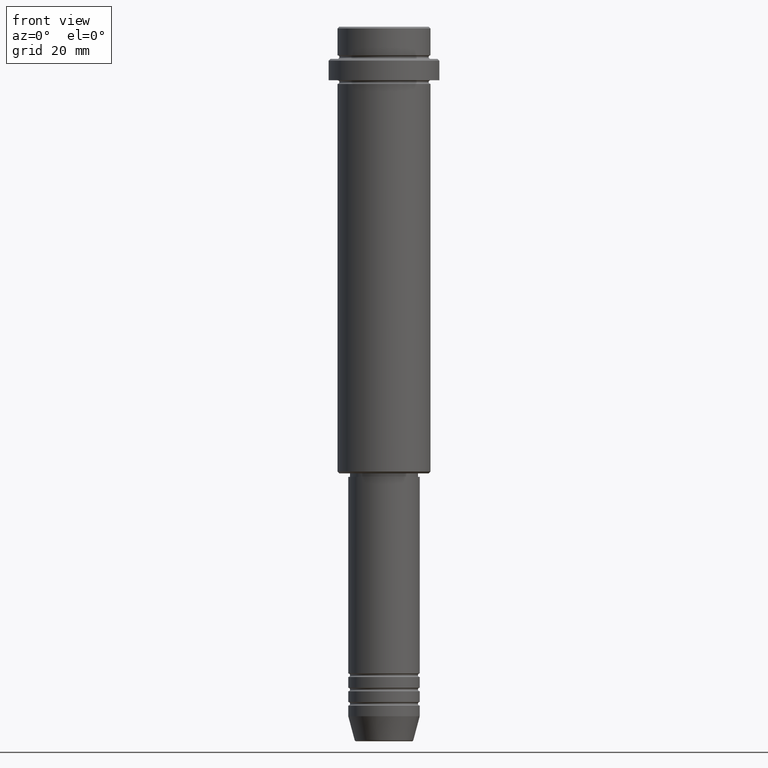
[diagram: clean part render]
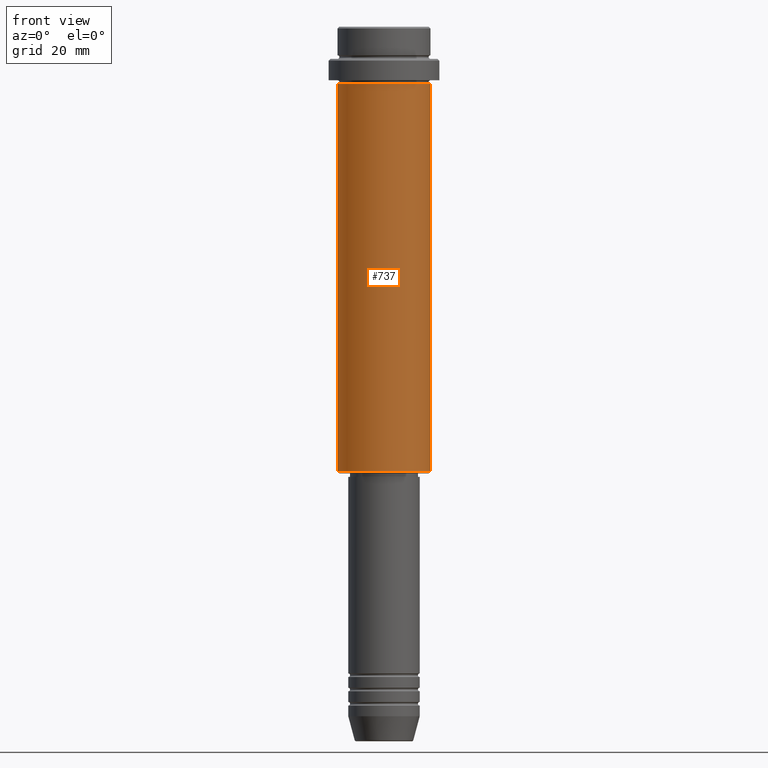
[diagram: same view with one face highlighted and labeled with its STEP entity id]
A machine part, front view. The second image highlights one B-rep face of the part: STEP entity #737.
In plain terms, the highlighted cylindrical surface (partial cylindrical patch) has radius 13 mm, axis along (-0, -0, 1).
Its self-contained STEP definition (entity closure, byte-faithful):
#26 = EDGE_CURVE ( 'NONE', #1156, #1200, #285, .T. ) ;
#37 = AXIS2_PLACEMENT_3D ( 'NONE', #753, #1289, #309 ) ;
#70 = EDGE_CURVE ( 'NONE', #901, #988, #762, .T. ) ;
#164 = FACE_OUTER_BOUND ( 'NONE', #583, .T. ) ;
#179 = LINE ( 'NONE', #968, #926 ) ;
#285 = CIRCLE ( 'NONE', #37, 13.00000000000000000 ) ;
#307 = DIRECTION ( 'NONE',  ( -0.000000000000000000, -0.000000000000000000, 1.000000000000000000 ) ) ;
#309 = DIRECTION ( 'NONE',  ( -1.000000000000000000, 0.000000000000000000, 0.000000000000000000 ) ) ;
#371 = DIRECTION ( 'NONE',  ( -0.000000000000000000, -0.000000000000000000, 1.000000000000000000 ) ) ;
#374 = CARTESIAN_POINT ( 'NONE',  ( 13.00000000000000000, 0.000000000000000000, -124.5000000000000284 ) ) ;
#489 = EDGE_CURVE ( 'NONE', #1200, #988, #179, .T. ) ;
#522 = CARTESIAN_POINT ( 'NONE',  ( -13.00000000000000000, 1.592040838891559095E-15, 0.000000000000000000 ) ) ;
#583 = EDGE_LOOP ( 'NONE', ( #671, #714, #972, #1327 ) ) ;
#622 = CARTESIAN_POINT ( 'NONE',  ( -13.00000000000000000, 1.592040838891559095E-15, -16.00000000000000000 ) ) ;
#671 = ORIENTED_EDGE ( 'NONE', *, *, #932, .F. ) ;
#710 = CARTESIAN_POINT ( 'NONE',  ( 0.000000000000000000, 0.000000000000000000, 0.000000000000000000 ) ) ;
#714 = ORIENTED_EDGE ( 'NONE', *, *, #26, .T. ) ;
#719 = AXIS2_PLACEMENT_3D ( 'NONE', #710, #371, #800 ) ;
#737 = ADVANCED_FACE ( 'NONE', ( #164 ), #1134, .T. ) ;
#747 = CARTESIAN_POINT ( 'NONE',  ( 0.000000000000000000, 0.000000000000000000, -16.00000000000000000 ) ) ;
#753 = CARTESIAN_POINT ( 'NONE',  ( 0.000000000000000000, 0.000000000000000000, -124.5000000000000284 ) ) ;
#762 = CIRCLE ( 'NONE', #880, 13.00000000000000000 ) ;
#771 = VECTOR ( 'NONE', #831, 1000.000000000000000 ) ;
#800 = DIRECTION ( 'NONE',  ( 1.000000000000000000, 0.000000000000000000, 0.000000000000000000 ) ) ;
#831 = DIRECTION ( 'NONE',  ( -0.000000000000000000, -0.000000000000000000, 1.000000000000000000 ) ) ;
#880 = AXIS2_PLACEMENT_3D ( 'NONE', #747, #946, #1284 ) ;
#901 = VERTEX_POINT ( 'NONE', #622 ) ;
#919 = CARTESIAN_POINT ( 'NONE',  ( -13.00000000000000000, 1.592040838891559095E-15, -124.5000000000000284 ) ) ;
#926 = VECTOR ( 'NONE', #307, 1000.000000000000000 ) ;
#931 = CARTESIAN_POINT ( 'NONE',  ( 13.00000000000000000, 0.000000000000000000, -16.00000000000000000 ) ) ;
#932 = EDGE_CURVE ( 'NONE', #1156, #901, #1376, .T. ) ;
#946 = DIRECTION ( 'NONE',  ( -0.000000000000000000, -0.000000000000000000, 1.000000000000000000 ) ) ;
#968 = CARTESIAN_POINT ( 'NONE',  ( 13.00000000000000000, 0.000000000000000000, 0.000000000000000000 ) ) ;
#972 = ORIENTED_EDGE ( 'NONE', *, *, #489, .T. ) ;
#988 = VERTEX_POINT ( 'NONE', #931 ) ;
#1134 = CYLINDRICAL_SURFACE ( 'NONE', #719, 13.00000000000000000 ) ;
#1156 = VERTEX_POINT ( 'NONE', #919 ) ;
#1200 = VERTEX_POINT ( 'NONE', #374 ) ;
#1284 = DIRECTION ( 'NONE',  ( 1.000000000000000000, 0.000000000000000000, 0.000000000000000000 ) ) ;
#1289 = DIRECTION ( 'NONE',  ( -0.000000000000000000, -0.000000000000000000, 1.000000000000000000 ) ) ;
#1327 = ORIENTED_EDGE ( 'NONE', *, *, #70, .F. ) ;
#1376 = LINE ( 'NONE', #522, #771 ) ;